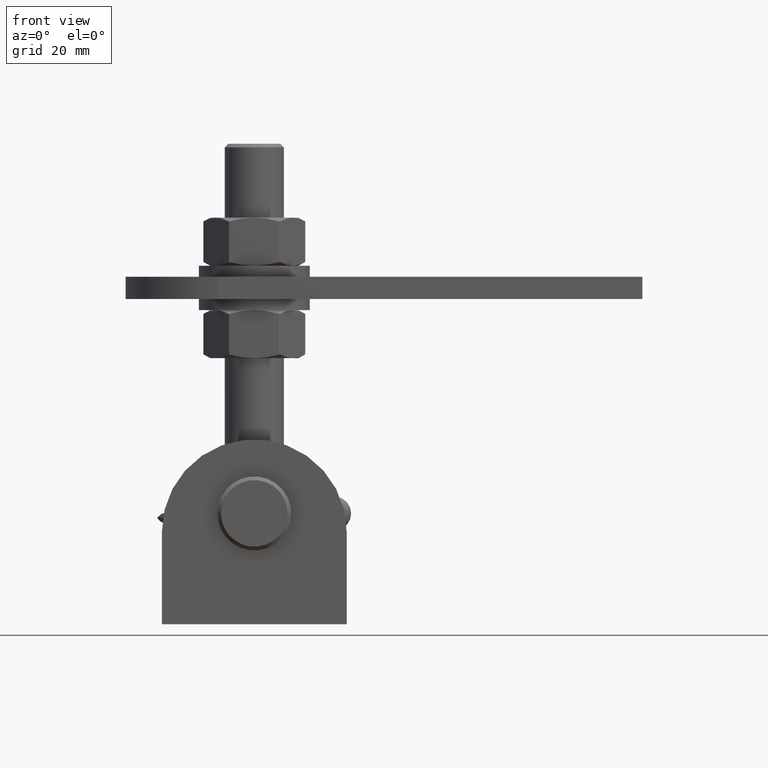
[diagram: clean part render]
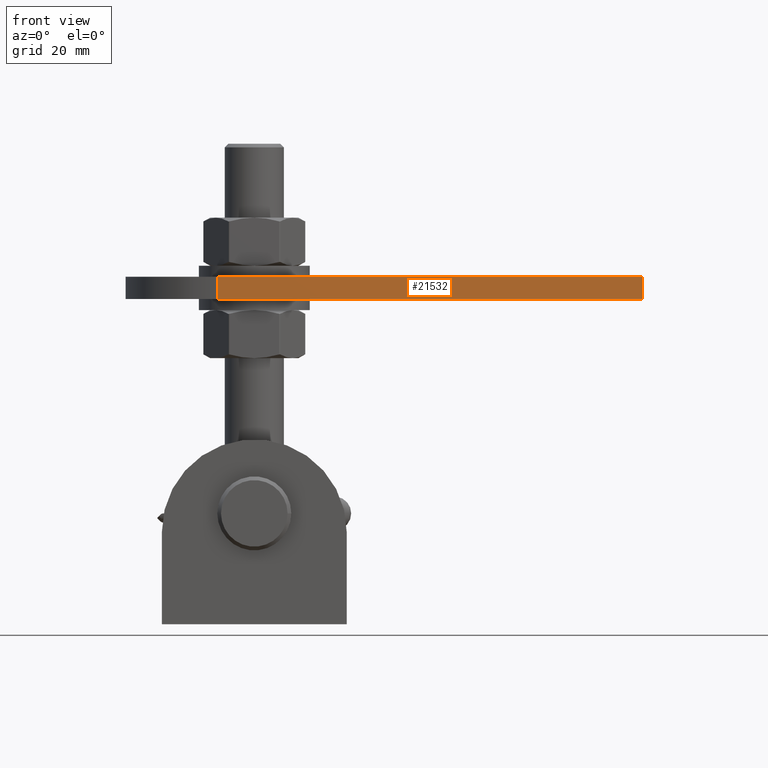
[diagram: same view with one face highlighted and labeled with its STEP entity id]
A machine part, front view. The second image highlights one B-rep face of the part: STEP entity #21532.
In plain terms, the highlighted planar face has unit normal (0, 1, 0).
Its self-contained STEP definition (entity closure, byte-faithful):
#269 = CARTESIAN_POINT ( 'NONE',  ( 70.00000000000002842, -25.00000000000001421, 3.000000000000000000 ) ) ;
#820 = ORIENTED_EDGE ( 'NONE', *, *, #4550, .F. ) ;
#1168 = ORIENTED_EDGE ( 'NONE', *, *, #8524, .T. ) ;
#1441 = VECTOR ( 'NONE', #5228, 1000.000000000000000 ) ;
#1451 = VERTEX_POINT ( 'NONE', #9147 ) ;
#3455 = VERTEX_POINT ( 'NONE', #18814 ) ;
#3472 = EDGE_CURVE ( 'NONE', #1451, #3455, #19014, .T. ) ;
#4079 = VERTEX_POINT ( 'NONE', #26837 ) ;
#4507 = VERTEX_POINT ( 'NONE', #11024 ) ;
#4550 = EDGE_CURVE ( 'NONE', #4079, #3455, #26658, .T. ) ;
#4692 = FACE_OUTER_BOUND ( 'NONE', #27599, .T. ) ;
#5228 = DIRECTION ( 'NONE',  ( 1.000000000000000000, -1.508455196501571183E-16, -0.000000000000000000 ) ) ;
#7280 = EDGE_CURVE ( 'NONE', #4507, #4079, #8867, .T. ) ;
#8524 = EDGE_CURVE ( 'NONE', #4507, #1451, #10917, .T. ) ;
#8867 = LINE ( 'NONE', #14196, #1441 ) ;
#9147 = CARTESIAN_POINT ( 'NONE',  ( -44.99999999999999289, -24.99999999999999645, -3.000000000000000000 ) ) ;
#10917 = LINE ( 'NONE', #16021, #18738 ) ;
#11024 = CARTESIAN_POINT ( 'NONE',  ( -44.99999999999999289, -24.99999999999999645, 3.000000000000000000 ) ) ;
#11161 = ORIENTED_EDGE ( 'NONE', *, *, #3472, .T. ) ;
#11362 = DIRECTION ( 'NONE',  ( 1.508455196501571183E-16, 1.000000000000000000, -0.000000000000000000 ) ) ;
#14196 = CARTESIAN_POINT ( 'NONE',  ( 70.00000000000002842, -25.00000000000001421, 3.000000000000000000 ) ) ;
#15269 = VECTOR ( 'NONE', #27605, 1000.000000000000000 ) ;
#15440 = DIRECTION ( 'NONE',  ( -1.000000000000000000, 1.508455196501571183E-16, 0.000000000000000000 ) ) ;
#16021 = CARTESIAN_POINT ( 'NONE',  ( -44.99999999999999289, -24.99999999999999645, 3.000000000000000000 ) ) ;
#18738 = VECTOR ( 'NONE', #20755, 1000.000000000000000 ) ;
#18814 = CARTESIAN_POINT ( 'NONE',  ( 70.00000000000002842, -25.00000000000001421, -3.000000000000000000 ) ) ;
#19014 = LINE ( 'NONE', #27142, #15269 ) ;
#19857 = CARTESIAN_POINT ( 'NONE',  ( 70.00000000000002842, -25.00000000000001421, 3.000000000000000000 ) ) ;
#20755 = DIRECTION ( 'NONE',  ( -0.000000000000000000, -0.000000000000000000, -1.000000000000000000 ) ) ;
#21532 = ADVANCED_FACE ( 'NONE', ( #4692 ), #24066, .F. ) ;
#21941 = DIRECTION ( 'NONE',  ( -0.000000000000000000, -0.000000000000000000, -1.000000000000000000 ) ) ;
#22272 = VECTOR ( 'NONE', #21941, 1000.000000000000000 ) ;
#24066 = PLANE ( 'NONE',  #25089 ) ;
#25089 = AXIS2_PLACEMENT_3D ( 'NONE', #269, #11362, #15440 ) ;
#26244 = ORIENTED_EDGE ( 'NONE', *, *, #7280, .F. ) ;
#26658 = LINE ( 'NONE', #19857, #22272 ) ;
#26837 = CARTESIAN_POINT ( 'NONE',  ( 70.00000000000002842, -25.00000000000001421, 3.000000000000000000 ) ) ;
#27142 = CARTESIAN_POINT ( 'NONE',  ( 70.00000000000002842, -25.00000000000001421, -3.000000000000000000 ) ) ;
#27599 = EDGE_LOOP ( 'NONE', ( #11161, #820, #26244, #1168 ) ) ;
#27605 = DIRECTION ( 'NONE',  ( 1.000000000000000000, -1.508455196501571183E-16, -0.000000000000000000 ) ) ;